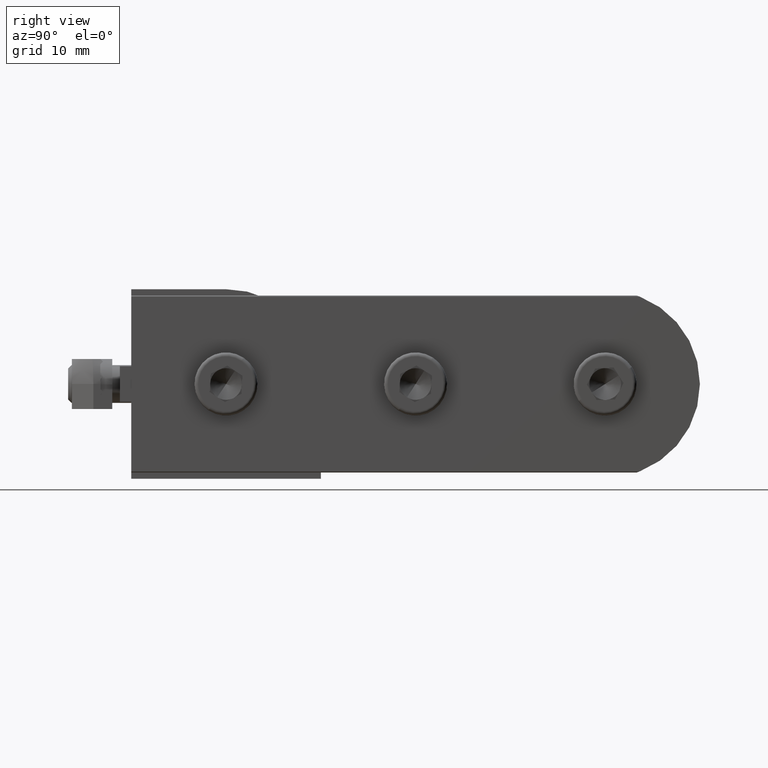
[diagram: clean part render]
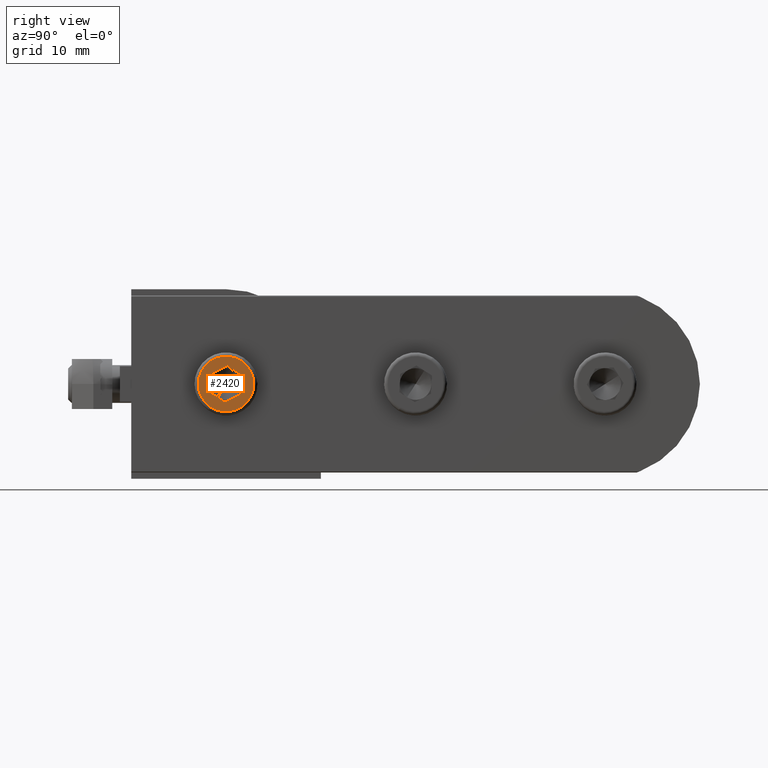
[diagram: same view with one face highlighted and labeled with its STEP entity id]
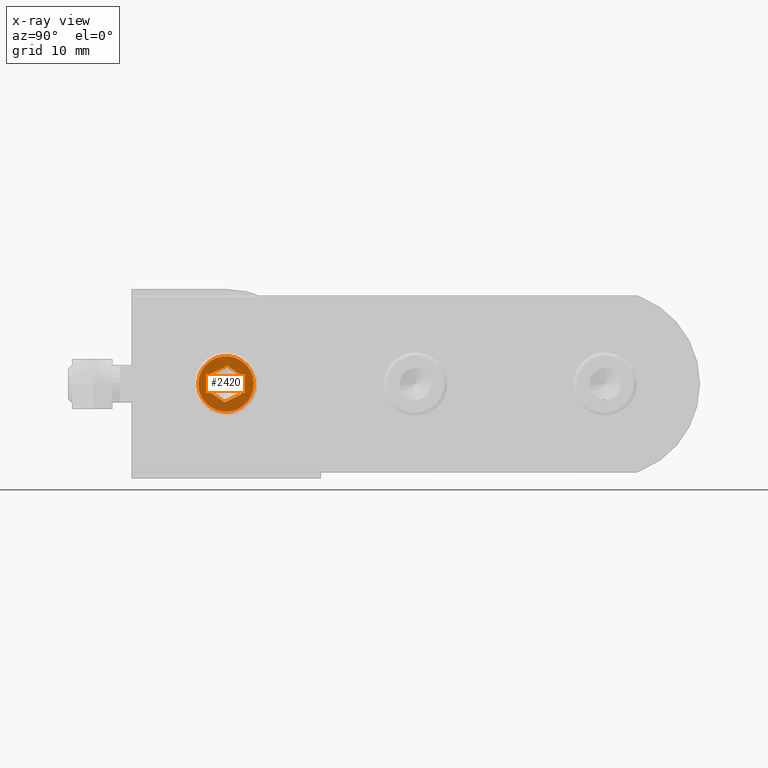
[diagram: x-ray of the same camera — body ghosted, the highlighted face saturated]
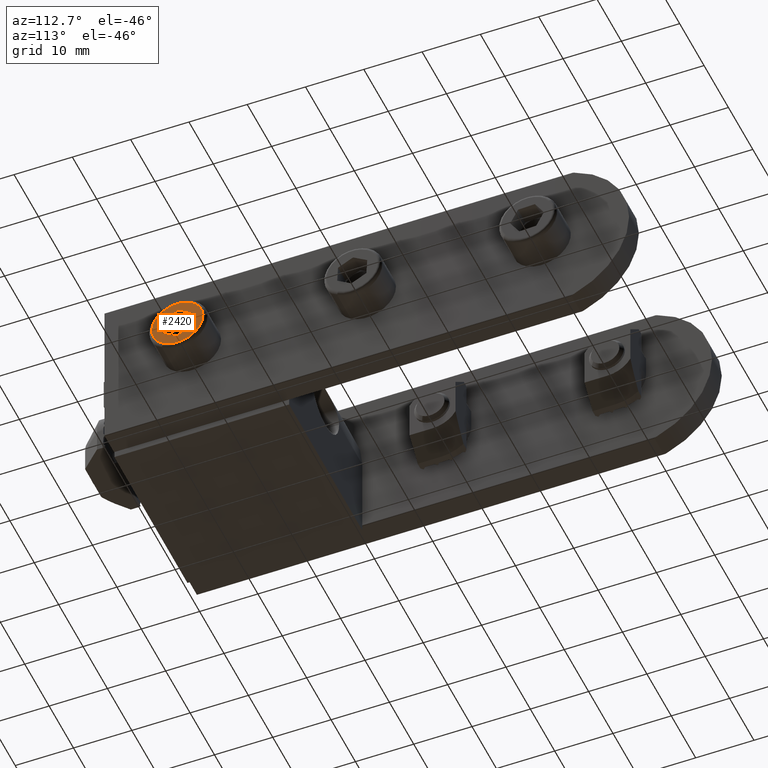
[diagram: same view with one face highlighted and labeled with its STEP entity id]
A machine part, right view. The second image highlights one B-rep face of the part: STEP entity #2420.
The next image is the same camera in x-ray: the body ghosted, the highlighted face saturated — about 0% of this face is hidden behind the body in this view.
A second angle (auxiliary view) of the same face is appended — the face is thin or edge-on in the first view.
In plain terms, the highlighted planar face has unit normal (1, -0, 0).
Its self-contained STEP definition (entity closure, byte-faithful):
#7 = CARTESIAN_POINT ( 'NONE',  ( -311.9400589040639602, 143.2276845017413507, 197.3777432571120869 ) ) ;
#10 = FACE_BOUND ( 'NONE', #5217, .T. ) ;
#84 = CARTESIAN_POINT ( 'NONE',  ( -311.9400589040639602, 140.3293861504094195, 197.3777432571121153 ) ) ;
#100 = VERTEX_POINT ( 'NONE', #1538 ) ;
#182 = ORIENTED_EDGE ( 'NONE', *, *, #4543, .T. ) ;
#213 = DIRECTION ( 'NONE',  ( -1.000000000000000000, 0.000000000000000000, 0.000000000000000000 ) ) ;
#493 = ORIENTED_EDGE ( 'NONE', *, *, #2249, .F. ) ;
#514 = CARTESIAN_POINT ( 'NONE',  ( -311.9400589040639602, 143.2276845017413507, 192.3577432571120767 ) ) ;
#684 = ORIENTED_EDGE ( 'NONE', *, *, #5142, .F. ) ;
#766 = ORIENTED_EDGE ( 'NONE', *, *, #5478, .T. ) ;
#803 = EDGE_CURVE ( 'NONE', #1347, #2084, #915, .T. ) ;
#851 = CARTESIAN_POINT ( 'NONE',  ( -311.9400589040639602, 144.6768336774073020, 194.8677432571120960 ) ) ;
#915 = LINE ( 'NONE', #3895, #2411 ) ;
#943 = CARTESIAN_POINT ( 'NONE',  ( -311.9400589040639602, 144.6768336774073020, 194.8677432571120960 ) ) ;
#1001 = DIRECTION ( 'NONE',  ( 0.000000000000000000, -1.000000000000000000, 0.000000000000000000 ) ) ;
#1118 = DIRECTION ( 'NONE',  ( 0.000000000000000000, 0.000000000000000000, 1.000000000000000000 ) ) ;
#1347 = VERTEX_POINT ( 'NONE', #2876 ) ;
#1476 = CIRCLE ( 'NONE', #2022, 4.400000000000014566 ) ;
#1524 = ORIENTED_EDGE ( 'NONE', *, *, #1585, .F. ) ;
#1538 = CARTESIAN_POINT ( 'NONE',  ( -311.9400589040639602, 140.3293861504094195, 192.3577432571120767 ) ) ;
#1585 = EDGE_CURVE ( 'NONE', #2084, #2267, #2148, .T. ) ;
#1586 = CARTESIAN_POINT ( 'NONE',  ( -311.9400589040639602, 140.3293861504094195, 197.3777432571121153 ) ) ;
#1710 = DIRECTION ( 'NONE',  ( 0.000000000000000000, 0.5000000000000034417, -0.8660254037844367092 ) ) ;
#1744 = PLANE ( 'NONE',  #2635 ) ;
#1777 = LINE ( 'NONE', #943, #4108 ) ;
#1800 = CARTESIAN_POINT ( 'NONE',  ( -311.9400589040639602, 143.2276845017413507, 192.3577432571120767 ) ) ;
#1903 = ORIENTED_EDGE ( 'NONE', *, *, #803, .F. ) ;
#1973 = DIRECTION ( 'NONE',  ( 0.000000000000000000, 0.000000000000000000, 1.000000000000000000 ) ) ;
#2022 = AXIS2_PLACEMENT_3D ( 'NONE', #5058, #2898, #1118 ) ;
#2067 = CIRCLE ( 'NONE', #4817, 4.400000000000014566 ) ;
#2084 = VERTEX_POINT ( 'NONE', #1586 ) ;
#2148 = LINE ( 'NONE', #84, #3206 ) ;
#2249 = EDGE_CURVE ( 'NONE', #4700, #2296, #1777, .T. ) ;
#2267 = VERTEX_POINT ( 'NONE', #5405 ) ;
#2296 = VERTEX_POINT ( 'NONE', #514 ) ;
#2343 = VECTOR ( 'NONE', #1001, 1000.000000000000000 ) ;
#2411 = VECTOR ( 'NONE', #3067, 1000.000000000000114 ) ;
#2420 = ADVANCED_FACE ( 'NONE', ( #3124, #10 ), #1744, .T. ) ;
#2516 = ORIENTED_EDGE ( 'NONE', *, *, #5300, .F. ) ;
#2521 = VECTOR ( 'NONE', #1710, 999.9999999999998863 ) ;
#2600 = DIRECTION ( 'NONE',  ( -1.000000000000000000, 0.000000000000000000, 0.000000000000000000 ) ) ;
#2635 = AXIS2_PLACEMENT_3D ( 'NONE', #3037, #2600, #3151 ) ;
#2685 = DIRECTION ( 'NONE',  ( 0.000000000000000000, -0.4999999999999991673, 0.8660254037844390407 ) ) ;
#2837 = CARTESIAN_POINT ( 'NONE',  ( -311.9400589040639602, 141.7785353260753709, 199.2677432571121017 ) ) ;
#2867 = VERTEX_POINT ( 'NONE', #3637 ) ;
#2876 = CARTESIAN_POINT ( 'NONE',  ( -311.9400589040639602, 138.8802369747434398, 194.8677432571120960 ) ) ;
#2894 = VECTOR ( 'NONE', #2685, 1000.000000000000114 ) ;
#2898 = DIRECTION ( 'NONE',  ( -1.000000000000000000, 0.000000000000000000, 0.000000000000000000 ) ) ;
#3037 = CARTESIAN_POINT ( 'NONE',  ( -311.9400589040639602, 141.7785353260753709, 194.8677432571120960 ) ) ;
#3067 = DIRECTION ( 'NONE',  ( 0.000000000000000000, 0.4999999999999991673, 0.8660254037844390407 ) ) ;
#3124 = FACE_OUTER_BOUND ( 'NONE', #4210, .T. ) ;
#3151 = DIRECTION ( 'NONE',  ( 0.000000000000000000, 0.000000000000000000, 1.000000000000000000 ) ) ;
#3161 = DIRECTION ( 'NONE',  ( 0.000000000000000000, 1.000000000000000000, -9.576507402308558405E-15 ) ) ;
#3206 = VECTOR ( 'NONE', #3161, 1000.000000000000000 ) ;
#3637 = CARTESIAN_POINT ( 'NONE',  ( -311.9400589040639602, 141.7785353260753709, 190.4677432571120903 ) ) ;
#3895 = CARTESIAN_POINT ( 'NONE',  ( -311.9400589040639602, 138.8802369747434398, 194.8677432571120960 ) ) ;
#3943 = LINE ( 'NONE', #7, #2521 ) ;
#4095 = CARTESIAN_POINT ( 'NONE',  ( -311.9400589040639602, 140.3293861504094195, 192.3577432571120767 ) ) ;
#4108 = VECTOR ( 'NONE', #4392, 1000.000000000000114 ) ;
#4121 = CARTESIAN_POINT ( 'NONE',  ( -311.9400589040639602, 141.7785353260753709, 194.8677432571120960 ) ) ;
#4210 = EDGE_LOOP ( 'NONE', ( #182, #766 ) ) ;
#4273 = ORIENTED_EDGE ( 'NONE', *, *, #5318, .F. ) ;
#4392 = DIRECTION ( 'NONE',  ( 0.000000000000000000, -0.4999999999999991673, -0.8660254037844390407 ) ) ;
#4504 = LINE ( 'NONE', #4095, #2894 ) ;
#4528 = LINE ( 'NONE', #1800, #2343 ) ;
#4543 = EDGE_CURVE ( 'NONE', #4967, #2867, #1476, .T. ) ;
#4700 = VERTEX_POINT ( 'NONE', #851 ) ;
#4817 = AXIS2_PLACEMENT_3D ( 'NONE', #4121, #213, #1973 ) ;
#4967 = VERTEX_POINT ( 'NONE', #2837 ) ;
#5058 = CARTESIAN_POINT ( 'NONE',  ( -311.9400589040639602, 141.7785353260753709, 194.8677432571120960 ) ) ;
#5142 = EDGE_CURVE ( 'NONE', #2267, #4700, #3943, .T. ) ;
#5217 = EDGE_LOOP ( 'NONE', ( #2516, #4273, #493, #684, #1524, #1903 ) ) ;
#5300 = EDGE_CURVE ( 'NONE', #100, #1347, #4504, .T. ) ;
#5318 = EDGE_CURVE ( 'NONE', #2296, #100, #4528, .T. ) ;
#5405 = CARTESIAN_POINT ( 'NONE',  ( -311.9400589040639602, 143.2276845017413507, 197.3777432571120869 ) ) ;
#5478 = EDGE_CURVE ( 'NONE', #2867, #4967, #2067, .T. ) ;